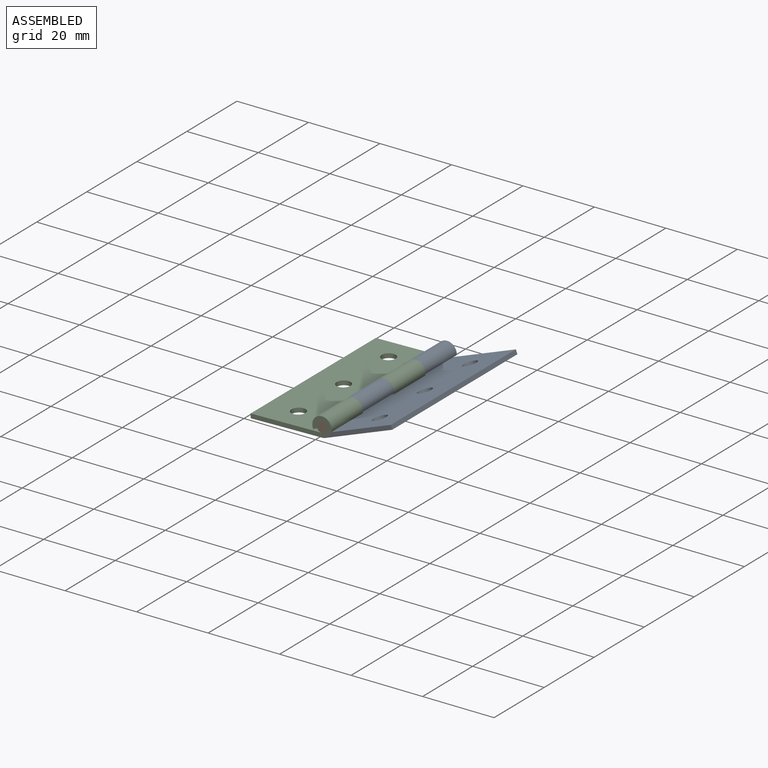
[diagram: assembled view]
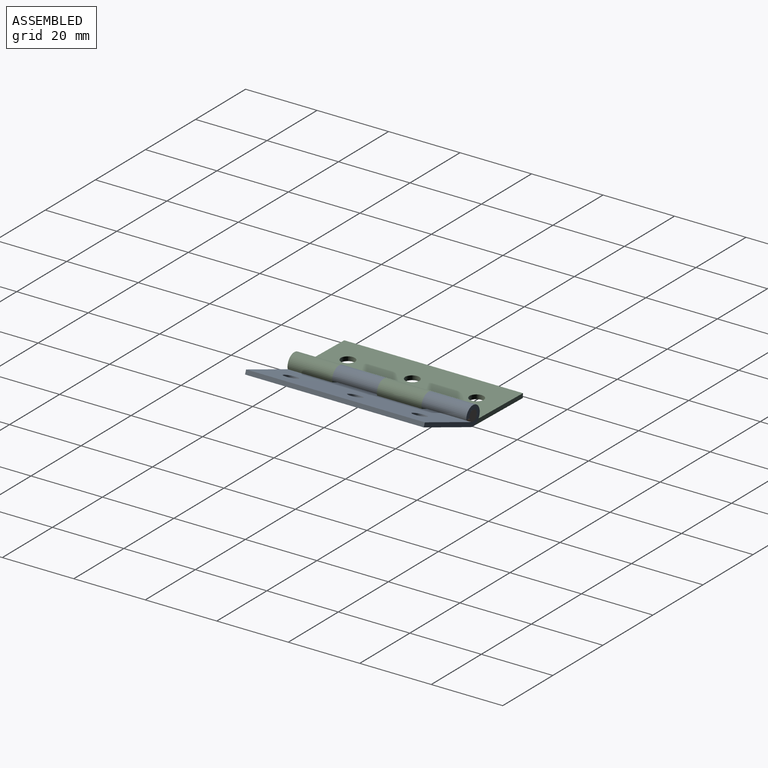
[diagram: assembled view, second angle]
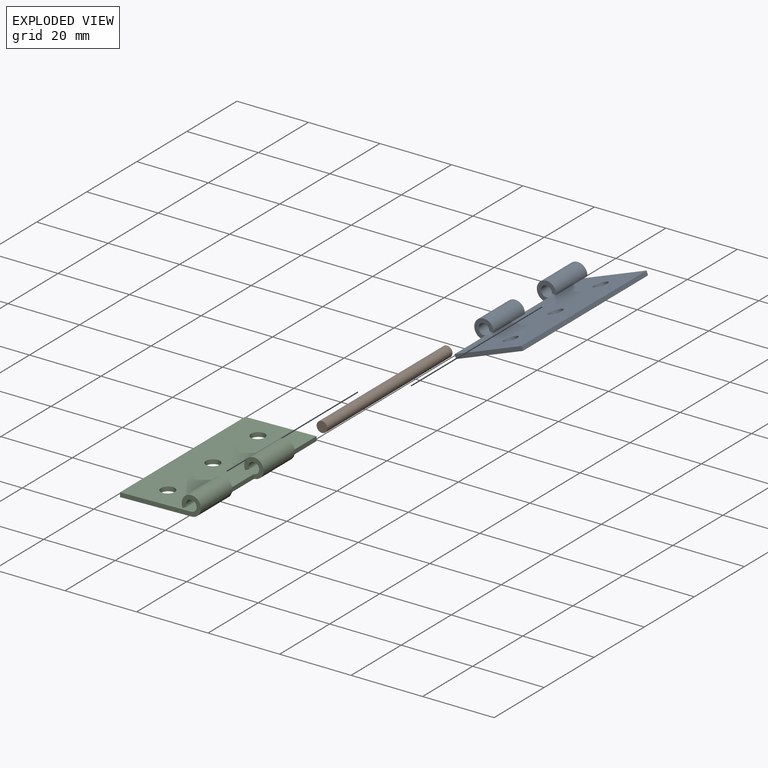
[diagram: exploded view]
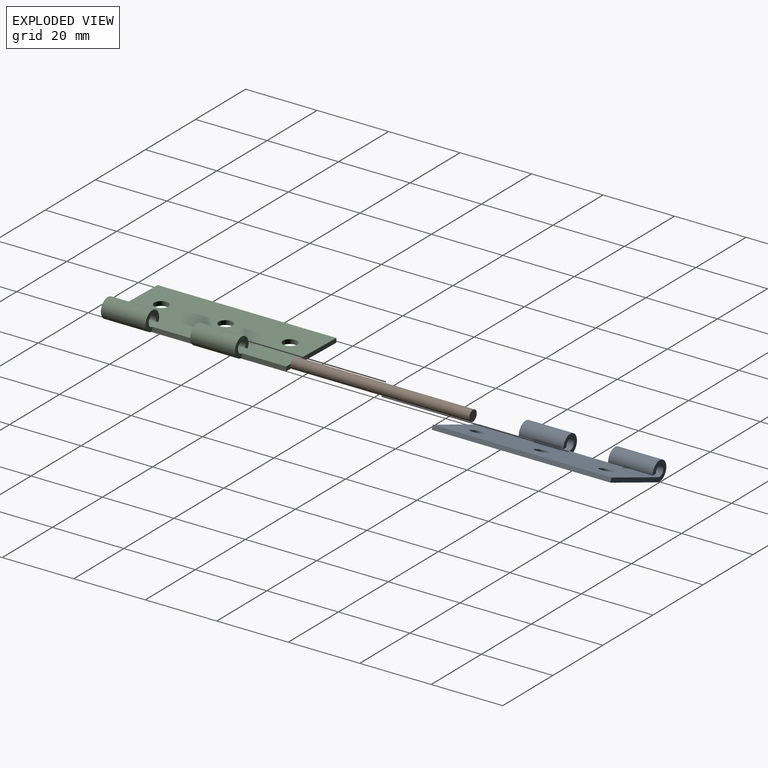
[diagram: exploded view, second angle]
ASSEMBLY  parts=3 mates=2
PART A: 19 faces, bbox 22.7x50x5.4 mm
  f0: cylinder r=2.7mm len=12.5mm, axis (0,1,0), area 173.8mm2, adj f1,f5,f11,f13
  f1: plane 12.5x1.09mm, normal (0.42,0,-0.91), area 15mm2, adj f0,f2,f11,f13
  f2: cylinder r=1.5mm len=12.5mm, axis (0,1,0), area 96.5mm2, adj f1,f9,f11,f13
  f3: plane 20x1.2mm, normal (0,1,0), area 24mm2, adj f4,f5,f9,f12
  f4: plane 50x1.2mm, normal (-1,0,0), area 60mm2, adj f3,f5,f9,f10
  f5: plane 50x20mm, normal (0,0,-1), area 964.2mm2, adj f0,f3,f4,f6,f10,f12,f15,f16
  f6: cylinder r=2.7mm len=12.5mm, axis (0,1,0), area 173.8mm2, adj f5,f7,f10,f14
  f7: plane 12.5x1.09mm, normal (0.42,0,-0.91), area 15mm2, adj f6,f8,f10,f14
  f8: cylinder r=1.5mm len=12.5mm, axis (0,1,0), area 96.5mm2, adj f7,f9,f10,f14
  f9: plane 50x20mm, normal (0,0,1), area 964.2mm2, adj f2,f3,f4,f8,f10,f12,f15,f16
  f10: plane 22.7x5.4mm, normal (0,-1,0), area 37mm2, adj f4,f5,f6,f7,f8,f9
  f11: plane 5.4x5.4mm, normal (0,1,0), area 13mm2, adj f0,f1,f2,f12
  f12: plane 12.5x1.2mm, normal (1,0,0), area 15mm2, adj f3,f5,f9,f11
  f13: plane 5.4x5.4mm, normal (0,-1,0), area 13mm2, adj f0,f1,f2,f15
  f14: plane 5.4x5.4mm, normal (0,1,0), area 13mm2, adj f6,f7,f8,f15
  f15: plane 12.5x1.2mm, normal (1,0,0), area 15mm2, adj f5,f9,f13,f14
  f16: cylinder r=1.95mm len=3.9mm, axis (0,0,1), area 14.7mm2, adj f5,f9
  f17: cylinder r=1.95mm len=3.9mm, axis (0,0,1), area 14.7mm2, adj f5,f9
  f18: cylinder r=1.95mm len=3.9mm, axis (0,0,1), area 14.7mm2, adj f5,f9
PART B: 3 faces, bbox 3x50x3 mm
  f0: cylinder r=1.5mm len=50mm, axis (0,1,0), area 471.2mm2, adj f1,f2
  f1: plane 3x3mm, normal (0,-1,0), area 7.1mm2, adj f0
  f2: plane 3x3mm, normal (0,1,0), area 7.1mm2, adj f0
PART C: same geometry as A
PLACE A rot(axis=(0.18,0,-0.98),180deg) t=(-18.01,-40.71,15.43)mm
PLACE B rot(axis=(0,1,0),178.8deg) t=(-37.67,9.29,10.88)mm
PLACE C rot(axis=(0,-1,0),1.2deg) t=(-57.61,9.29,7.75)mm fixed
MATE revolute B.f0 <-> A.f0  axis (0,1,0) through (-37.67,9.29,10.88)mm
MATE revolute B.f0 <-> C.f0  axis (0,1,0) through (-37.67,-40.71,10.88)mm
